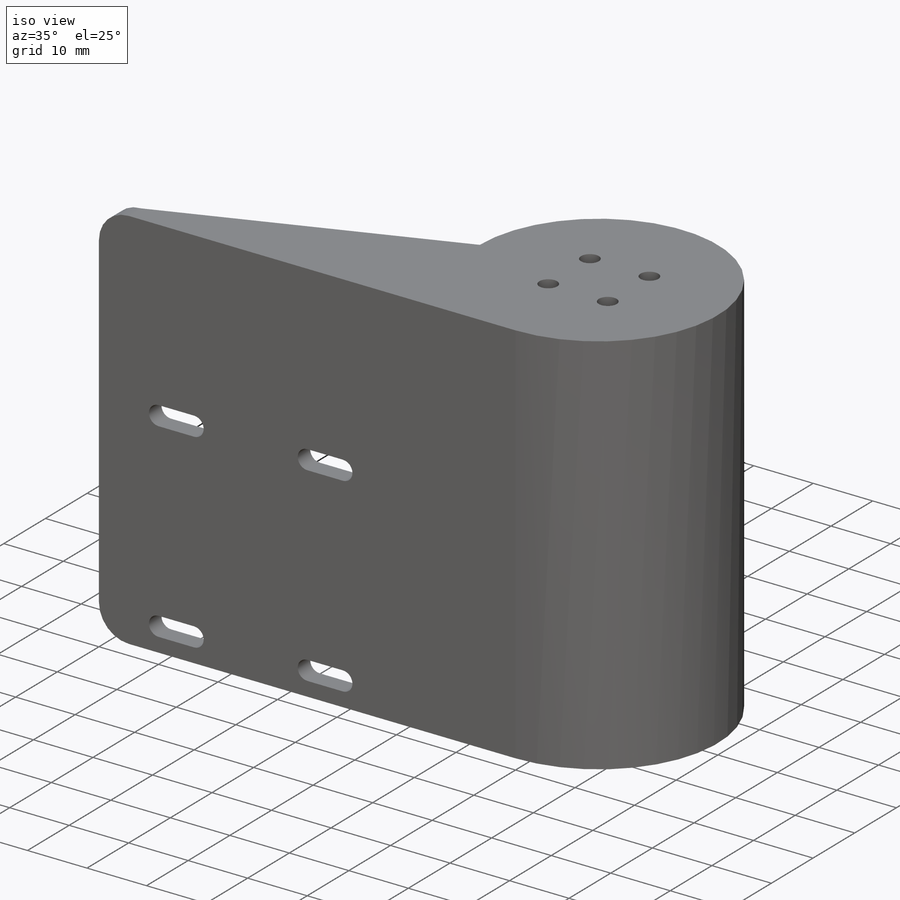
[diagram: iso view]
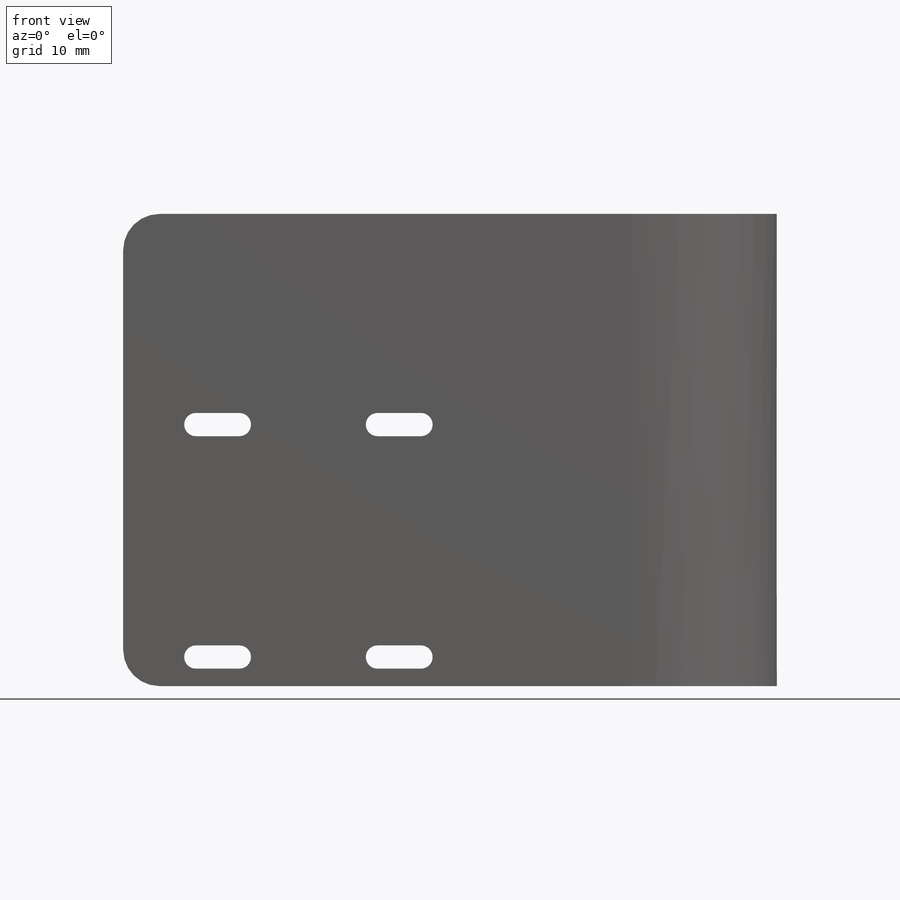
[diagram: front view]
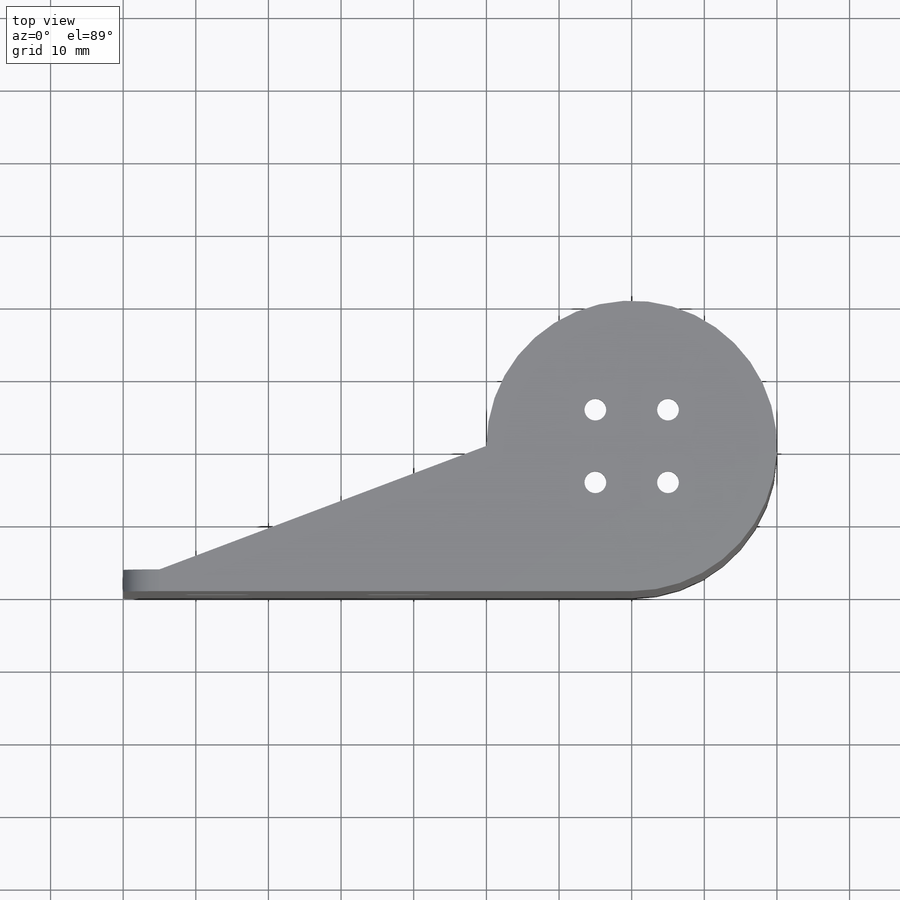
[diagram: top view]
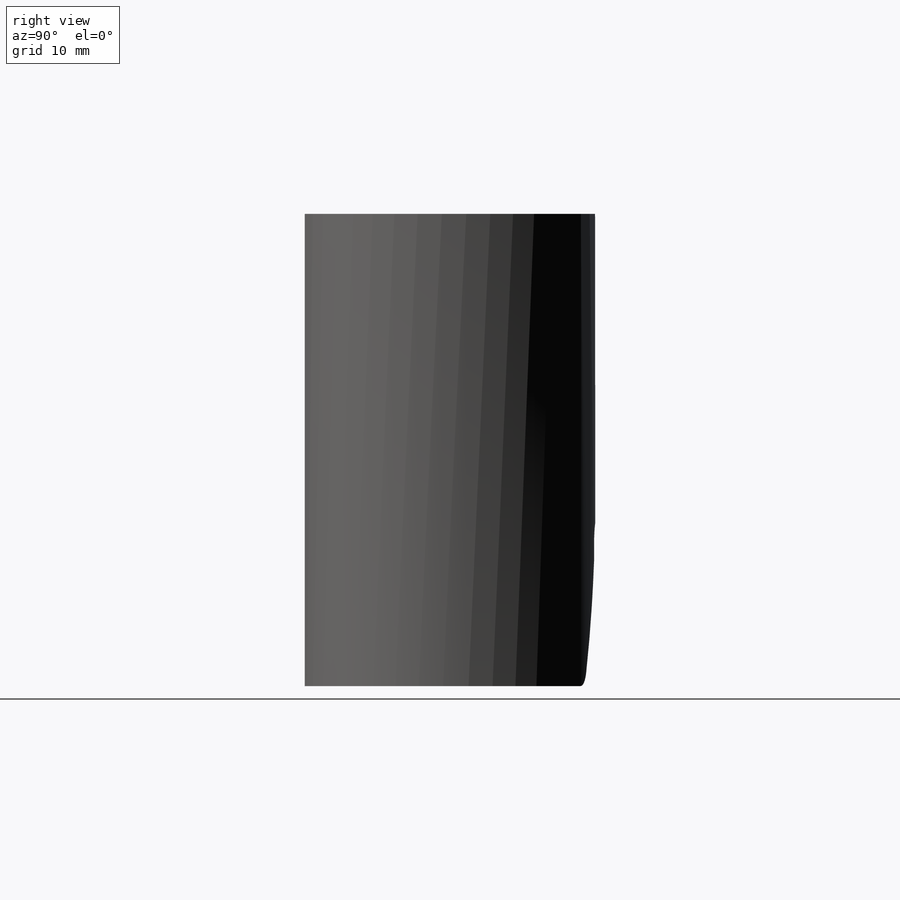
[diagram: right view]
SOLIDWORKS PART (.sldprt)
format: sldprt  version: not decoded by parser v0  size: 384,000 bytes
history: native  units: mm
features: sketch x8, extrude x4, cut_extrude x4, fillet x2, material x1, pattern_circular x1, chamfer x1 (+13 scaffold rows collapsed)
feature tree (34):
  scaffold x13  (default folders/planes/origin — collapsed)
  material  "Material <not specified>"
  sketch  "Sketch1"  dims[c1.D1=40.0mm c1.D2=35.0mm c1.D3=80.0mm c1.D4=3.0mm c2.D3=20.0mm]
  extrude  "Boss-Extrude1"  Depth=65mm
  sketch  "Sketch2"  dims[D1=5.0mm D2=5.0mm D3=22.5mm D4=15.0mm]
  cut_extrude  "Cut-Extrude1"  [1 undecoded]
  sketch  "Sketch4"
  extrude  "Boss-Extrude2"  Depth=3mm
  sketch  "Sketch5"  dims[c1.D1=3.0mm c1.D2=5.0mm c1.D3=5.0mm c2.D2=5.0mm c2.D3=5.0mm]
  cut_extrude  "Cut-Extrude3"  [1 undecoded]
  pattern_circular  "CirPattern1"  Count=4 Angle=90deg
  sketch  "Sketch8"  dims[c1.D3=5.0mm c1.D4=5.0mm c1.D5=5.0mm c1.D6=5.0mm c1.D2=5.0mm c2.D5=5.0mm c2.D6=5.0mm c2.D1=20.0mm c2.D2=20.0mm c2.D4=20.0mm c3.D5=10.0mm c3.D6=10.0mm c3.D7=40.0mm c3.D8=20.0mm c3.D9=50.0mm c4.D7=40.0mm c4.D8=20.0mm c4.D9=50.0mm c5.D8=50.0mm c5.D9=40.0mm c5.D1=50.0mm c5.D2=10.0mm c5.D5=10.0mm c5.D6=10.0mm c6.D2=40.0mm]
  extrude  "Boss-Extrude5"  Depth=3mm
  fillet  "Fillet2"  Radius=5mm
  sketch  "Sketch9"  dims[D1=20.0mm D2=15.0mm D3=20.0mm D4=15.0mm]
  cut_extrude  "Cut-Extrude4"  [1 undecoded]
  sketch  "Sketch10"  dims[c1.D2=1.6mm c1.D3=6.0mm c1.D1=25.0mm c2.D3=32.0mm c2.D4=6.0mm c2.D5=38.0mm c2.D6=20.0mm c2.D1=0.0mm]
  cut_extrude  "Cut-Extrude5"  [1 undecoded]
  chamfer  "Chamfer1"  Distance=2.5mm Angle=45deg
  fillet  "Fillet1"  Radius=2.5mm
  sketch  "Sketch11"
  extrude  "Boss-Extrude6"  Depth=5mm
decode coverage: 14 of 20 modeling features carry decoded parameters
note: 4 parameter values undecoded
summary: no parameter record found for 4 features
note: suppression state not decoded; provenance and decode notes live in map.json
